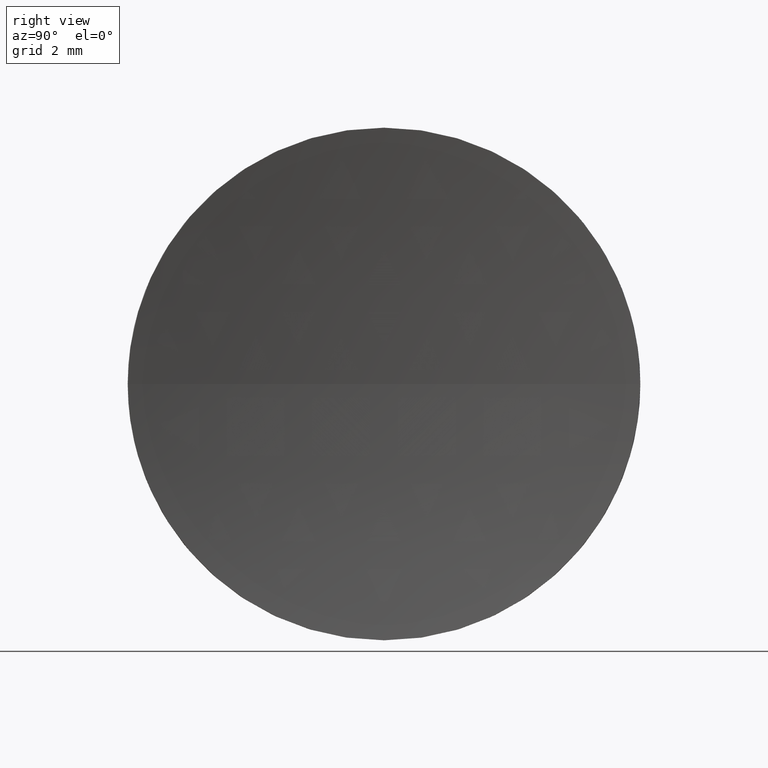
[diagram: clean part render]
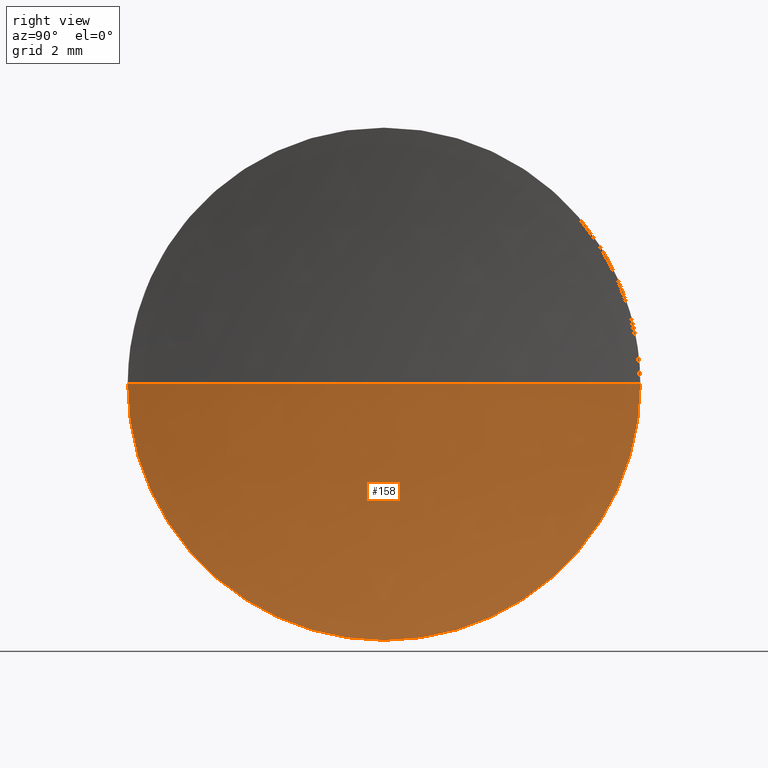
[diagram: same view with one face highlighted and labeled with its STEP entity id]
A machine part, right view. The second image highlights one B-rep face of the part: STEP entity #158.
In plain terms, the highlighted spherical surface has radius 32.2463 mm.
Its self-contained STEP definition (entity closure, byte-faithful):
#2 = CARTESIAN_POINT ( 'NONE',  ( 78.06586459440524100, 26.08904114919495900, 0.0000000000000000000 ) ) ;
#4 = DIRECTION ( 'NONE',  ( 0.0000000000000000000, 0.0000000000000000000, 1.000000000000000000 ) ) ;
#8 = VERTEX_POINT ( 'NONE', #16 ) ;
#16 = CARTESIAN_POINT ( 'NONE',  ( 45.81958546217385500, 26.08904114919495500, 0.0000000000000000000 ) ) ;
#19 = ORIENTED_EDGE ( 'NONE', *, *, #111, .F. ) ;
#24 = AXIS2_PLACEMENT_3D ( 'NONE', #65, #137, #46 ) ;
#29 = VERTEX_POINT ( 'NONE', #131 ) ;
#34 = CARTESIAN_POINT ( 'NONE',  ( 46.20958549791029700, 31.08904114919497300, 6.123233995736783000E-016 ) ) ;
#45 = AXIS2_PLACEMENT_3D ( 'NONE', #2, #138, #61 ) ;
#46 = DIRECTION ( 'NONE',  ( 0.0000000000000000000, -1.000000000000000000, -1.224646799147353200E-016 ) ) ;
#57 = EDGE_CURVE ( 'NONE', #29, #112, #68, .T. ) ;
#61 = DIRECTION ( 'NONE',  ( 0.0000000000000000000, -1.000000000000000000, 0.0000000000000000000 ) ) ;
#65 = CARTESIAN_POINT ( 'NONE',  ( 78.06586459440524100, 26.08904114919495900, 0.0000000000000000000 ) ) ;
#68 = CIRCLE ( 'NONE', #136, 5.000000000000000900 ) ;
#71 = VERTEX_POINT ( 'NONE', #34 ) ;
#74 = CIRCLE ( 'NONE', #24, 32.24627913223138600 ) ;
#80 = CARTESIAN_POINT ( 'NONE',  ( 78.06586459440524100, 26.08904114919495900, 0.0000000000000000000 ) ) ;
#81 = DIRECTION ( 'NONE',  ( -1.000000000000000000, -0.0000000000000000000, -0.0000000000000000000 ) ) ;
#91 = CIRCLE ( 'NONE', #128, 5.000000000000000900 ) ;
#93 = CARTESIAN_POINT ( 'NONE',  ( 46.20958549791029700, 26.08904114919495900, 0.0000000000000000000 ) ) ;
#101 = ORIENTED_EDGE ( 'NONE', *, *, #103, .T. ) ;
#102 = AXIS2_PLACEMENT_3D ( 'NONE', #80, #176, #105 ) ;
#103 = EDGE_CURVE ( 'NONE', #71, #8, #74, .T. ) ;
#105 = DIRECTION ( 'NONE',  ( -1.000000000000000000, 0.0000000000000000000, 0.0000000000000000000 ) ) ;
#106 = CARTESIAN_POINT ( 'NONE',  ( 46.20958549791029700, 26.08904114919495900, 0.0000000000000000000 ) ) ;
#110 = CIRCLE ( 'NONE', #102, 32.24627913223138600 ) ;
#111 = EDGE_CURVE ( 'NONE', #71, #29, #91, .T. ) ;
#112 = VERTEX_POINT ( 'NONE', #162 ) ;
#128 = AXIS2_PLACEMENT_3D ( 'NONE', #93, #175, #161 ) ;
#131 = CARTESIAN_POINT ( 'NONE',  ( 46.20958549791029700, 26.08904114919495900, -5.000000000000000900 ) ) ;
#136 = AXIS2_PLACEMENT_3D ( 'NONE', #106, #81, #4 ) ;
#137 = DIRECTION ( 'NONE',  ( 0.0000000000000000000, -1.224646799147353200E-016, 1.000000000000000000 ) ) ;
#138 = DIRECTION ( 'NONE',  ( 0.0000000000000000000, 0.0000000000000000000, 1.000000000000000000 ) ) ;
#139 = ORIENTED_EDGE ( 'NONE', *, *, #57, .F. ) ;
#154 = SPHERICAL_SURFACE ( 'NONE', #45, 32.24627913223138600 ) ;
#158 = ADVANCED_FACE ( 'NONE', ( #168 ), #154, .F. ) ;
#161 = DIRECTION ( 'NONE',  ( 0.0000000000000000000, 0.0000000000000000000, 1.000000000000000000 ) ) ;
#162 = CARTESIAN_POINT ( 'NONE',  ( 46.20958549791029700, 21.08904114919494400, 0.0000000000000000000 ) ) ;
#168 = FACE_OUTER_BOUND ( 'NONE', #171, .T. ) ;
#171 = EDGE_LOOP ( 'NONE', ( #19, #101, #180, #139 ) ) ;
#173 = EDGE_CURVE ( 'NONE', #112, #8, #110, .T. ) ;
#175 = DIRECTION ( 'NONE',  ( -1.000000000000000000, -0.0000000000000000000, -0.0000000000000000000 ) ) ;
#176 = DIRECTION ( 'NONE',  ( 0.0000000000000000000, 0.0000000000000000000, -1.000000000000000000 ) ) ;
#180 = ORIENTED_EDGE ( 'NONE', *, *, #173, .F. ) ;